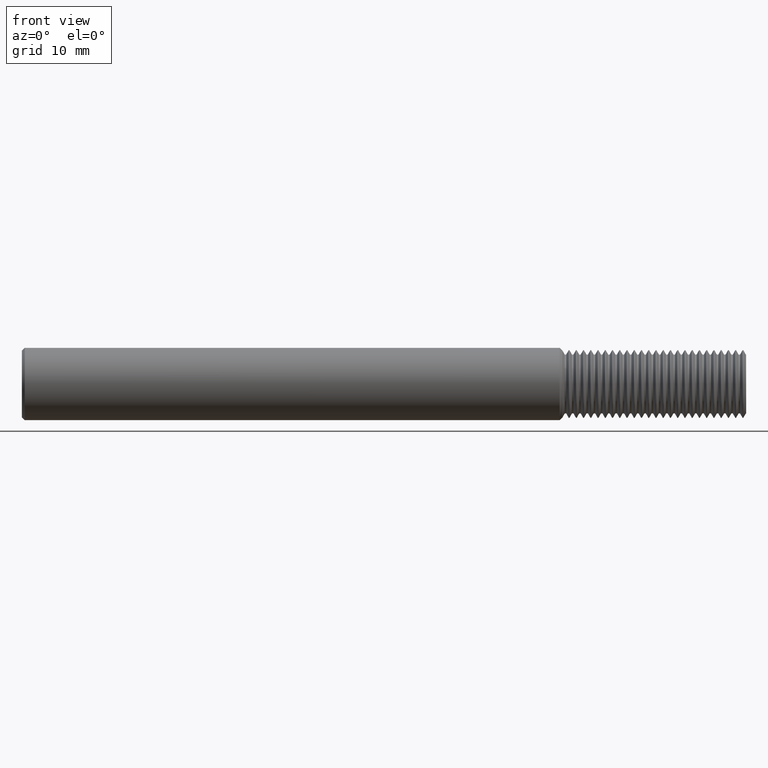
[diagram: clean part render]
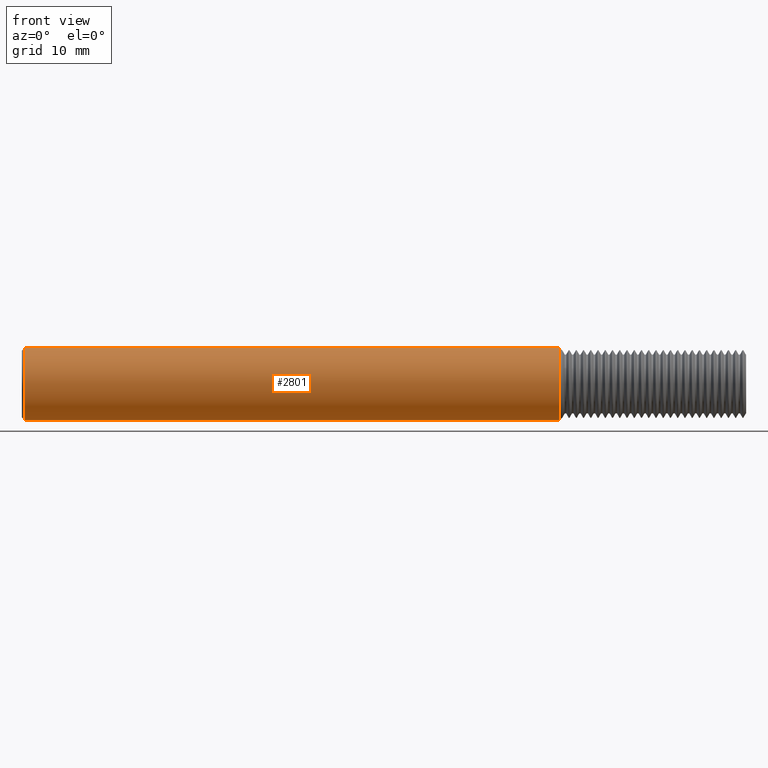
[diagram: same view with one face highlighted and labeled with its STEP entity id]
A machine part, front view. The second image highlights one B-rep face of the part: STEP entity #2801.
In plain terms, the highlighted cylindrical surface (edge-blend (fillet) strip) has radius 3.1712 mm, axis along (1, -0, -0).
Its self-contained STEP definition (entity closure, byte-faithful):
#176 = CIRCLE ( 'NONE', #881, 0.1248500000000000026 ) ;
#185 = DIRECTION ( 'NONE',  ( 0.000000000000000000, 0.000000000000000000, 1.000000000000000000 ) ) ;
#350 = CARTESIAN_POINT ( 'NONE',  ( 0.01000000000000016674, 0.000000000000000000, -0.1248500000000000026 ) ) ;
#358 = LINE ( 'NONE', #4917, #4706 ) ;
#439 = CIRCLE ( 'NONE', #4570, 0.1248500000000000026 ) ;
#445 = ORIENTED_EDGE ( 'NONE', *, *, #1537, .F. ) ;
#510 = DIRECTION ( 'NONE',  ( 1.000000000000000000, -0.000000000000000000, -0.000000000000000000 ) ) ;
#616 = DIRECTION ( 'NONE',  ( 1.000000000000000000, -0.000000000000000000, -0.000000000000000000 ) ) ;
#703 = DIRECTION ( 'NONE',  ( 0.000000000000000000, 0.000000000000000000, -1.000000000000000000 ) ) ;
#783 = CARTESIAN_POINT ( 'NONE',  ( 0.01000000000000016674, 1.528971528735470422E-17, 0.1248500000000000026 ) ) ;
#881 = AXIS2_PLACEMENT_3D ( 'NONE', #1386, #510, #185 ) ;
#999 = CARTESIAN_POINT ( 'NONE',  ( 1.856150000000000411, 0.000000000000000000, 0.000000000000000000 ) ) ;
#1081 = DIRECTION ( 'NONE',  ( 0.000000000000000000, 0.000000000000000000, -1.000000000000000000 ) ) ;
#1097 = VERTEX_POINT ( 'NONE', #4648 ) ;
#1105 = FACE_OUTER_BOUND ( 'NONE', #3152, .T. ) ;
#1127 = CYLINDRICAL_SURFACE ( 'NONE', #2719, 0.1248500000000000026 ) ;
#1386 = CARTESIAN_POINT ( 'NONE',  ( 0.01000000000000016674, 0.000000000000000000, 0.000000000000000000 ) ) ;
#1388 = ORIENTED_EDGE ( 'NONE', *, *, #4272, .T. ) ;
#1537 = EDGE_CURVE ( 'NONE', #3369, #1097, #1733, .T. ) ;
#1557 = ORIENTED_EDGE ( 'NONE', *, *, #3029, .T. ) ;
#1710 = CARTESIAN_POINT ( 'NONE',  ( 2.500000000000000000, 1.528971528735470422E-17, 0.1248500000000000026 ) ) ;
#1733 = LINE ( 'NONE', #1710, #4494 ) ;
#1871 = DIRECTION ( 'NONE',  ( 1.000000000000000000, -0.000000000000000000, -0.000000000000000000 ) ) ;
#2519 = CARTESIAN_POINT ( 'NONE',  ( 1.856150000000000411, 0.000000000000000000, -0.1248500000000000026 ) ) ;
#2719 = AXIS2_PLACEMENT_3D ( 'NONE', #5343, #4449, #703 ) ;
#2801 = ADVANCED_FACE ( 'NONE', ( #1105 ), #1127, .T. ) ;
#2879 = VERTEX_POINT ( 'NONE', #2519 ) ;
#3029 = EDGE_CURVE ( 'NONE', #3369, #3536, #176, .T. ) ;
#3152 = EDGE_LOOP ( 'NONE', ( #445, #1557, #1388, #3501 ) ) ;
#3369 = VERTEX_POINT ( 'NONE', #783 ) ;
#3501 = ORIENTED_EDGE ( 'NONE', *, *, #4539, .F. ) ;
#3536 = VERTEX_POINT ( 'NONE', #350 ) ;
#4272 = EDGE_CURVE ( 'NONE', #3536, #2879, #358, .T. ) ;
#4449 = DIRECTION ( 'NONE',  ( 1.000000000000000000, -0.000000000000000000, -0.000000000000000000 ) ) ;
#4494 = VECTOR ( 'NONE', #616, 39.37007874015748143 ) ;
#4516 = DIRECTION ( 'NONE',  ( 1.000000000000000000, -0.000000000000000000, -0.000000000000000000 ) ) ;
#4539 = EDGE_CURVE ( 'NONE', #1097, #2879, #439, .T. ) ;
#4570 = AXIS2_PLACEMENT_3D ( 'NONE', #999, #1871, #1081 ) ;
#4648 = CARTESIAN_POINT ( 'NONE',  ( 1.856150000000000411, 1.528971528735470422E-17, 0.1248500000000000026 ) ) ;
#4706 = VECTOR ( 'NONE', #4516, 39.37007874015748143 ) ;
#4917 = CARTESIAN_POINT ( 'NONE',  ( 2.500000000000000000, 0.000000000000000000, -0.1248500000000000026 ) ) ;
#5343 = CARTESIAN_POINT ( 'NONE',  ( 2.500000000000000000, 0.000000000000000000, 0.000000000000000000 ) ) ;